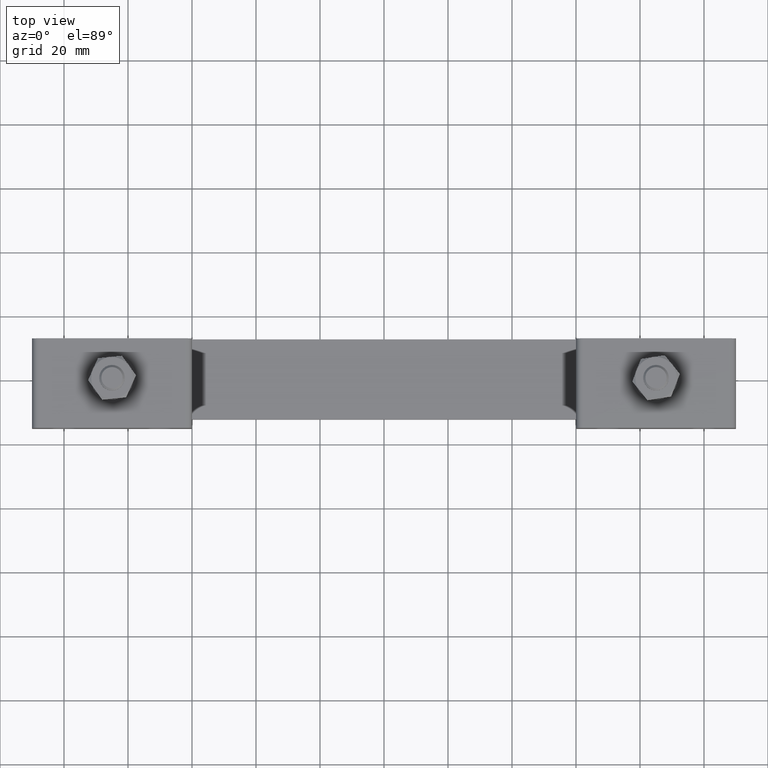
[diagram: clean part render]
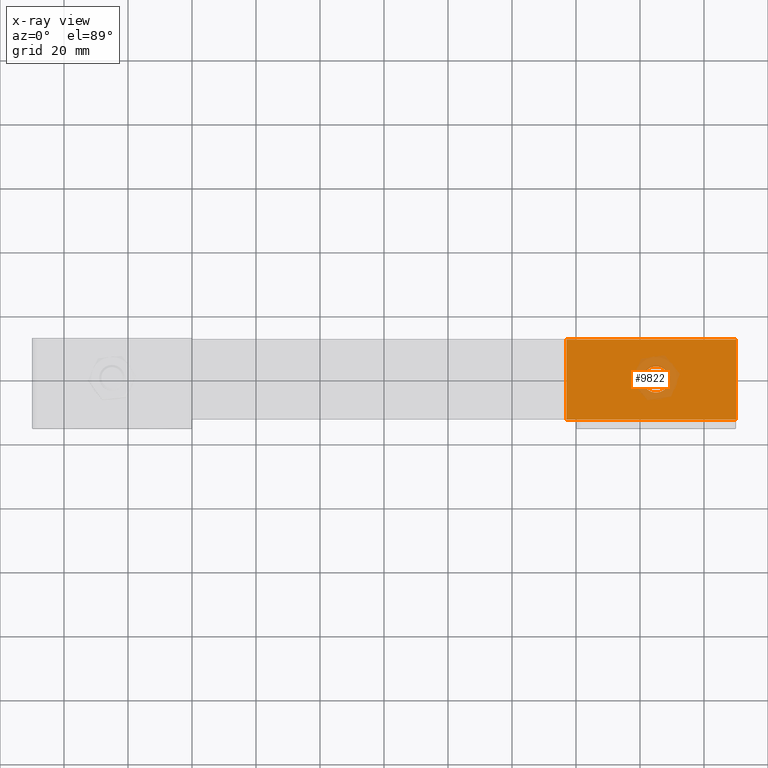
[diagram: x-ray — body ghosted, one internal face saturated and labeled with its STEP entity id]
A machine part, top view, then the same camera in x-ray: the body is ghosted and one INTERNAL B-rep face — a face not visible from any outside direction — is saturated and labeled: STEP entity #9822.
In plain terms, the highlighted planar face has unit normal (-0, 0, 1).
Its self-contained STEP definition (entity closure, byte-faithful):
#565 = DIRECTION ( 'NONE',  ( -1.459206720071611400E-017, -1.000000000000000000, -9.675489695642183500E-016 ) ) ;
#733 = DIRECTION ( 'NONE',  ( 1.459206720071611400E-017, 1.000000000000000000, 9.675489695642183500E-016 ) ) ;
#790 = CARTESIAN_POINT ( 'NONE',  ( 80.90000000000000600, 2.344739468718171000E-014, 3.999999999999996400 ) ) ;
#2084 = LINE ( 'NONE', #15975, #10456 ) ;
#2654 = VERTEX_POINT ( 'NONE', #17006 ) ;
#3111 = CIRCLE ( 'NONE', #6287, 4.100000000000006800 ) ;
#3252 = VECTOR ( 'NONE', #733, 1000.000000000000000 ) ;
#3323 = AXIS2_PLACEMENT_3D ( 'NONE', #13822, #12060, #7476 ) ;
#3795 = CARTESIAN_POINT ( 'NONE',  ( 110.0000000000000000, -12.50000000000020100, 4.000000000000000000 ) ) ;
#3865 = FACE_OUTER_BOUND ( 'NONE', #10160, .T. ) ;
#4267 = EDGE_CURVE ( 'NONE', #2654, #12328, #9388, .T. ) ;
#4618 = EDGE_CURVE ( 'NONE', #13779, #12305, #14637, .T. ) ;
#4841 = CARTESIAN_POINT ( 'NONE',  ( 57.00000000000000000, 12.50000000000022000, 4.000000000000000000 ) ) ;
#4847 = DIRECTION ( 'NONE',  ( 4.551320235724200100E-016, 2.582599771193760300E-016, 1.000000000000000000 ) ) ;
#5709 = PLANE ( 'NONE',  #3323 ) ;
#6287 = AXIS2_PLACEMENT_3D ( 'NONE', #14526, #4847, #14455 ) ;
#7385 = DIRECTION ( 'NONE',  ( -1.000000000000000000, -1.459206720071598500E-017, -8.462065736472216000E-016 ) ) ;
#7476 = DIRECTION ( 'NONE',  ( -1.000000000000000000, -1.459206720071623700E-017, -9.326467572090310900E-016 ) ) ;
#8067 = CARTESIAN_POINT ( 'NONE',  ( 57.00000000000000000, -12.50000000000022000, 3.999999999999940000 ) ) ;
#9388 = CIRCLE ( 'NONE', #20053, 4.100000000000006800 ) ;
#9822 = ADVANCED_FACE ( 'NONE', ( #11702, #3865 ), #5709, .T. ) ;
#10160 = EDGE_LOOP ( 'NONE', ( #16461, #20780, #19270, #17646 ) ) ;
#10166 = CARTESIAN_POINT ( 'NONE',  ( 110.0000000000000000, 12.50000000000024000, 4.000000000000000000 ) ) ;
#10456 = VECTOR ( 'NONE', #15771, 1000.000000000000000 ) ;
#11340 = ORIENTED_EDGE ( 'NONE', *, *, #4267, .F. ) ;
#11439 = VERTEX_POINT ( 'NONE', #4841 ) ;
#11581 = EDGE_CURVE ( 'NONE', #12305, #11439, #21013, .T. ) ;
#11633 = DIRECTION ( 'NONE',  ( -1.000000000000000000, -1.459206720071623700E-017, -9.326467572090310900E-016 ) ) ;
#11702 = FACE_BOUND ( 'NONE', #18281, .T. ) ;
#12060 = DIRECTION ( 'NONE',  ( -9.326467572090310900E-016, 2.582599771193760300E-016, 1.000000000000000000 ) ) ;
#12305 = VERTEX_POINT ( 'NONE', #13543 ) ;
#12328 = VERTEX_POINT ( 'NONE', #790 ) ;
#13543 = CARTESIAN_POINT ( 'NONE',  ( 110.0000000000000000, 12.50000000000024000, 4.000000000000000000 ) ) ;
#13779 = VERTEX_POINT ( 'NONE', #17086 ) ;
#13822 = CARTESIAN_POINT ( 'NONE',  ( 110.0000000000000000, 12.50000000000024000, 4.000000000000000000 ) ) ;
#14455 = DIRECTION ( 'NONE',  ( -1.000000000000000000, -1.459206720071598500E-017, -8.462065736472216000E-016 ) ) ;
#14526 = CARTESIAN_POINT ( 'NONE',  ( 85.00000000000000000, 2.350722216270464800E-014, 4.000000000000000000 ) ) ;
#14637 = LINE ( 'NONE', #3795, #3252 ) ;
#15182 = ORIENTED_EDGE ( 'NONE', *, *, #19159, .F. ) ;
#15350 = CARTESIAN_POINT ( 'NONE',  ( 85.00000000000000000, 2.350722216270464800E-014, 4.000000000000000000 ) ) ;
#15614 = VECTOR ( 'NONE', #565, 1000.000000000000000 ) ;
#15644 = VERTEX_POINT ( 'NONE', #8067 ) ;
#15771 = DIRECTION ( 'NONE',  ( 1.000000000000000000, 1.459206720071623700E-017, 9.326467572090310900E-016 ) ) ;
#15975 = CARTESIAN_POINT ( 'NONE',  ( 110.0000000000000000, -12.50000000000020100, 4.000000000000000000 ) ) ;
#16405 = EDGE_CURVE ( 'NONE', #11439, #15644, #19227, .T. ) ;
#16461 = ORIENTED_EDGE ( 'NONE', *, *, #4618, .T. ) ;
#16638 = CARTESIAN_POINT ( 'NONE',  ( 57.00000000000000000, -12.50000000000022000, 3.999999999999940000 ) ) ;
#17006 = CARTESIAN_POINT ( 'NONE',  ( 89.10000000000000900, 2.293581446201748100E-014, 3.999999999999998200 ) ) ;
#17059 = DIRECTION ( 'NONE',  ( 4.551320235724200100E-016, 2.582599771193760300E-016, 1.000000000000000000 ) ) ;
#17086 = CARTESIAN_POINT ( 'NONE',  ( 110.0000000000000000, -12.50000000000020100, 4.000000000000000000 ) ) ;
#17646 = ORIENTED_EDGE ( 'NONE', *, *, #20898, .T. ) ;
#18281 = EDGE_LOOP ( 'NONE', ( #15182, #11340 ) ) ;
#19159 = EDGE_CURVE ( 'NONE', #12328, #2654, #3111, .T. ) ;
#19227 = LINE ( 'NONE', #16638, #15614 ) ;
#19270 = ORIENTED_EDGE ( 'NONE', *, *, #16405, .T. ) ;
#19487 = VECTOR ( 'NONE', #11633, 1000.000000000000000 ) ;
#20053 = AXIS2_PLACEMENT_3D ( 'NONE', #15350, #17059, #7385 ) ;
#20780 = ORIENTED_EDGE ( 'NONE', *, *, #11581, .T. ) ;
#20898 = EDGE_CURVE ( 'NONE', #15644, #13779, #2084, .T. ) ;
#21013 = LINE ( 'NONE', #10166, #19487 ) ;